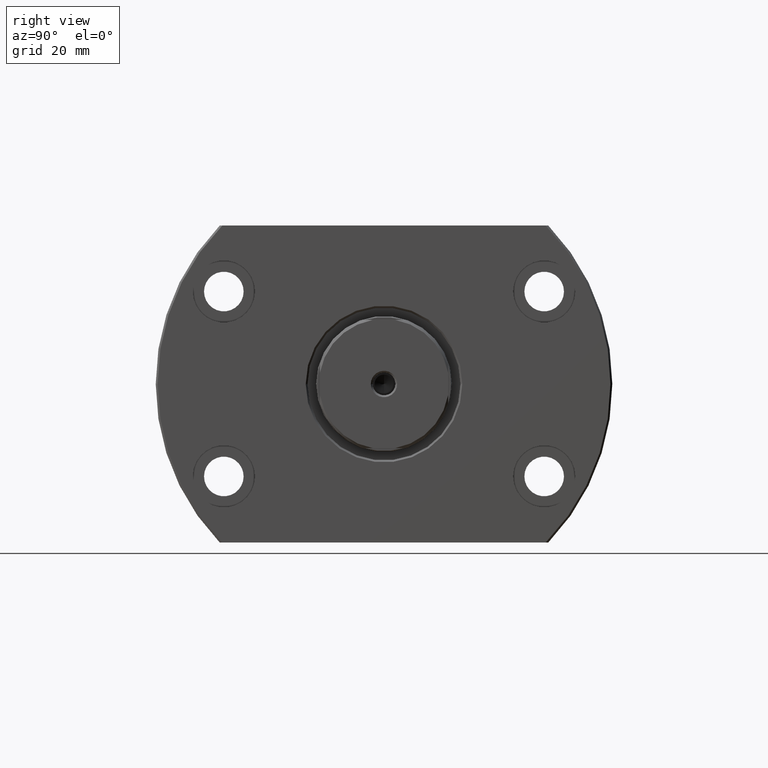
[diagram: clean part render]
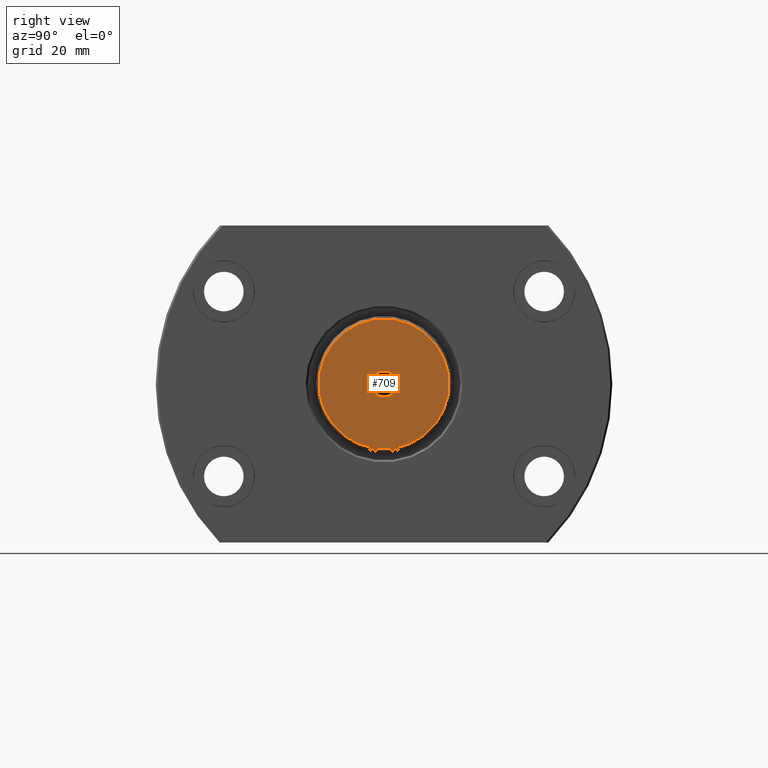
[diagram: same view with one face highlighted and labeled with its STEP entity id]
A machine part, right view. The second image highlights one B-rep face of the part: STEP entity #709.
In plain terms, the highlighted planar face has unit normal (-1, -0, 0).
Its self-contained STEP definition (entity closure, byte-faithful):
#15 = EDGE_CURVE ( 'NONE', #1761, #2182, #62, .T. ) ;
#39 = EDGE_CURVE ( 'NONE', #1761, #2683, #2537, .T. ) ;
#62 = CIRCLE ( 'NONE', #784, 17.24999999999994316 ) ;
#63 = CARTESIAN_POINT ( 'NONE',  ( 126.0000000000000000, 16.99999999999791100, 2.926174977692003409 ) ) ;
#65 = AXIS2_PLACEMENT_3D ( 'NONE', #176, #739, #211 ) ;
#73 = AXIS2_PLACEMENT_3D ( 'NONE', #782, #2016, #1328 ) ;
#162 = VECTOR ( 'NONE', #1290, 1000.000000000000000 ) ;
#176 = CARTESIAN_POINT ( 'NONE',  ( 126.0000000000000000, -8.673617379884035472E-16, 0.000000000000000000 ) ) ;
#211 = DIRECTION ( 'NONE',  ( 1.069542322069065801E-17, -1.000000000000000000, 0.000000000000000000 ) ) ;
#216 = DIRECTION ( 'NONE',  ( 1.000000000000000000, 1.069542322069065801E-17, 0.000000000000000000 ) ) ;
#233 = VECTOR ( 'NONE', #2561, 1000.000000000000000 ) ;
#286 = DIRECTION ( 'NONE',  ( 0.000000000000000000, -1.000000000000000000, 0.000000000000000000 ) ) ;
#301 = CARTESIAN_POINT ( 'NONE',  ( 126.0000000000000853, 5.105144464163442919, -17.00000000000000000 ) ) ;
#328 = CARTESIAN_POINT ( 'NONE',  ( 125.9999999999997300, -17.00000000000208900, -5.105144464165531915 ) ) ;
#332 = CARTESIAN_POINT ( 'NONE',  ( 125.9999999999999432, -2.926174977679645295, 17.00000000000000000 ) ) ;
#393 = VERTEX_POINT ( 'NONE', #63 ) ;
#412 = FACE_OUTER_BOUND ( 'NONE', #3203, .T. ) ;
#437 = CARTESIAN_POINT ( 'NONE',  ( 126.0000000000002842, 16.99999999999791100, -2.926174977691696988 ) ) ;
#442 = VERTEX_POINT ( 'NONE', #1598 ) ;
#496 = DIRECTION ( 'NONE',  ( 1.000000000000000000, 1.069542322069065801E-17, 0.000000000000000000 ) ) ;
#578 = CARTESIAN_POINT ( 'NONE',  ( 125.9999999999997300, -17.00000000000209255, 2.926174977667505228 ) ) ;
#612 = ORIENTED_EDGE ( 'NONE', *, *, #3157, .F. ) ;
#654 = VERTEX_POINT ( 'NONE', #1675 ) ;
#680 = DIRECTION ( 'NONE',  ( -1.000000000000000000, -1.069542322069065801E-17, -0.000000000000000000 ) ) ;
#692 = ORIENTED_EDGE ( 'NONE', *, *, #1698, .T. ) ;
#694 = VECTOR ( 'NONE', #875, 1000.000000000000000 ) ;
#709 = ADVANCED_FACE ( 'NONE', ( #2649, #412 ), #2408, .F. ) ;
#739 = DIRECTION ( 'NONE',  ( -1.000000000000000000, -1.069542322069065801E-17, 0.000000000000000000 ) ) ;
#782 = CARTESIAN_POINT ( 'NONE',  ( 126.0000000000000000, -2.088153647360210827E-12, 0.000000000000000000 ) ) ;
#784 = AXIS2_PLACEMENT_3D ( 'NONE', #2279, #2848, #286 ) ;
#816 = CARTESIAN_POINT ( 'NONE',  ( 125.9999999999999432, -2.926174977679784295, -17.00000000000000000 ) ) ;
#844 = CIRCLE ( 'NONE', #1536, 17.24999999999999289 ) ;
#875 = DIRECTION ( 'NONE',  ( 0.000000000000000000, 0.000000000000000000, -1.000000000000000000 ) ) ;
#912 = DIRECTION ( 'NONE',  ( 0.000000000000000000, -1.000000000000000000, 0.000000000000000000 ) ) ;
#938 = CARTESIAN_POINT ( 'NONE',  ( 126.0000000000000568, 2.926174977679564471, -17.00000000000000000 ) ) ;
#941 = ORIENTED_EDGE ( 'NONE', *, *, #15, .T. ) ;
#945 = CIRCLE ( 'NONE', #1849, 17.24999999999995737 ) ;
#1101 = ORIENTED_EDGE ( 'NONE', *, *, #39, .F. ) ;
#1104 = CIRCLE ( 'NONE', #73, 3.500000000000514255 ) ;
#1204 = EDGE_CURVE ( 'NONE', #1401, #1967, #945, .T. ) ;
#1268 = CIRCLE ( 'NONE', #2161, 3.500000000000514255 ) ;
#1290 = DIRECTION ( 'NONE',  ( -1.631035662777531685E-14, -1.000000000000000000, 0.000000000000000000 ) ) ;
#1328 = DIRECTION ( 'NONE',  ( 0.000000000000000000, -1.000000000000000000, 0.000000000000000000 ) ) ;
#1386 = EDGE_LOOP ( 'NONE', ( #2900, #2076 ) ) ;
#1401 = VERTEX_POINT ( 'NONE', #332 ) ;
#1437 = CARTESIAN_POINT ( 'NONE',  ( 126.0000000000000000, 1.347623325807023035E-15, 0.000000000000000000 ) ) ;
#1439 = ORIENTED_EDGE ( 'NONE', *, *, #2895, .T. ) ;
#1452 = DIRECTION ( 'NONE',  ( 0.000000000000000000, -1.000000000000000000, 0.000000000000000000 ) ) ;
#1519 = LINE ( 'NONE', #328, #233 ) ;
#1536 = AXIS2_PLACEMENT_3D ( 'NONE', #2162, #2108, #912 ) ;
#1572 = VERTEX_POINT ( 'NONE', #1637 ) ;
#1598 = CARTESIAN_POINT ( 'NONE',  ( 126.0000000000000000, -3.500000000002724487, 4.286263797016515595E-16 ) ) ;
#1637 = CARTESIAN_POINT ( 'NONE',  ( 126.0000000000000000, -17.00000000000208900, -2.926174977667656663 ) ) ;
#1640 = CARTESIAN_POINT ( 'NONE',  ( 126.0000000000002842, 16.99999999999791100, 5.105144464165529250 ) ) ;
#1666 = ORIENTED_EDGE ( 'NONE', *, *, #2914, .F. ) ;
#1675 = CARTESIAN_POINT ( 'NONE',  ( 126.0000000000000568, 2.926174977679871336, 17.00000000000000000 ) ) ;
#1698 = EDGE_CURVE ( 'NONE', #1572, #2683, #3135, .T. ) ;
#1750 = AXIS2_PLACEMENT_3D ( 'NONE', #1437, #216, #2961 ) ;
#1761 = VERTEX_POINT ( 'NONE', #938 ) ;
#1807 = VECTOR ( 'NONE', #2710, 1000.000000000000000 ) ;
#1849 = AXIS2_PLACEMENT_3D ( 'NONE', #2194, #496, #3162 ) ;
#1967 = VERTEX_POINT ( 'NONE', #578 ) ;
#2016 = DIRECTION ( 'NONE',  ( -1.000000000000000000, -1.069542322069065801E-17, -0.000000000000000000 ) ) ;
#2029 = CARTESIAN_POINT ( 'NONE',  ( 126.0000000000000000, 3.499999999998420819, 0.000000000000000000 ) ) ;
#2076 = ORIENTED_EDGE ( 'NONE', *, *, #3099, .T. ) ;
#2108 = DIRECTION ( 'NONE',  ( 1.000000000000000000, 1.069542322069065801E-17, 0.000000000000000000 ) ) ;
#2161 = AXIS2_PLACEMENT_3D ( 'NONE', #2910, #680, #1452 ) ;
#2162 = CARTESIAN_POINT ( 'NONE',  ( 126.0000000000000000, 1.347623325807023035E-15, 0.000000000000000000 ) ) ;
#2182 = VERTEX_POINT ( 'NONE', #437 ) ;
#2194 = CARTESIAN_POINT ( 'NONE',  ( 126.0000000000000000, 1.347623325807023035E-15, 0.000000000000000000 ) ) ;
#2279 = CARTESIAN_POINT ( 'NONE',  ( 126.0000000000000000, 1.347623325807023035E-15, 0.000000000000000000 ) ) ;
#2354 = LINE ( 'NONE', #1640, #694 ) ;
#2408 = PLANE ( 'NONE',  #65 ) ;
#2452 = LINE ( 'NONE', #3201, #1807 ) ;
#2537 = LINE ( 'NONE', #301, #162 ) ;
#2549 = ORIENTED_EDGE ( 'NONE', *, *, #3111, .F. ) ;
#2561 = DIRECTION ( 'NONE',  ( 0.000000000000000000, -3.397990964119857677E-16, 1.000000000000000000 ) ) ;
#2649 = FACE_BOUND ( 'NONE', #1386, .T. ) ;
#2667 = ORIENTED_EDGE ( 'NONE', *, *, #1204, .T. ) ;
#2683 = VERTEX_POINT ( 'NONE', #816 ) ;
#2687 = EDGE_CURVE ( 'NONE', #2752, #442, #1104, .T. ) ;
#2710 = DIRECTION ( 'NONE',  ( 1.631035662777531685E-14, 1.000000000000000000, 0.000000000000000000 ) ) ;
#2752 = VERTEX_POINT ( 'NONE', #2029 ) ;
#2848 = DIRECTION ( 'NONE',  ( 1.000000000000000000, 1.069542322069065801E-17, 0.000000000000000000 ) ) ;
#2895 = EDGE_CURVE ( 'NONE', #393, #654, #844, .T. ) ;
#2900 = ORIENTED_EDGE ( 'NONE', *, *, #2687, .T. ) ;
#2910 = CARTESIAN_POINT ( 'NONE',  ( 126.0000000000000000, -2.088153647360210827E-12, 0.000000000000000000 ) ) ;
#2914 = EDGE_CURVE ( 'NONE', #393, #2182, #2354, .T. ) ;
#2961 = DIRECTION ( 'NONE',  ( 0.000000000000000000, -1.000000000000000000, 0.000000000000000000 ) ) ;
#3099 = EDGE_CURVE ( 'NONE', #442, #2752, #1268, .T. ) ;
#3111 = EDGE_CURVE ( 'NONE', #1401, #654, #2452, .T. ) ;
#3135 = CIRCLE ( 'NONE', #1750, 17.24999999999998224 ) ;
#3157 = EDGE_CURVE ( 'NONE', #1572, #1967, #1519, .T. ) ;
#3162 = DIRECTION ( 'NONE',  ( 0.000000000000000000, -1.000000000000000000, -1.776356839400250465E-15 ) ) ;
#3201 = CARTESIAN_POINT ( 'NONE',  ( 125.9999999999999147, -5.105144464167616469, 17.00000000000000000 ) ) ;
#3203 = EDGE_LOOP ( 'NONE', ( #1101, #941, #1666, #1439, #2549, #2667, #612, #692 ) ) ;